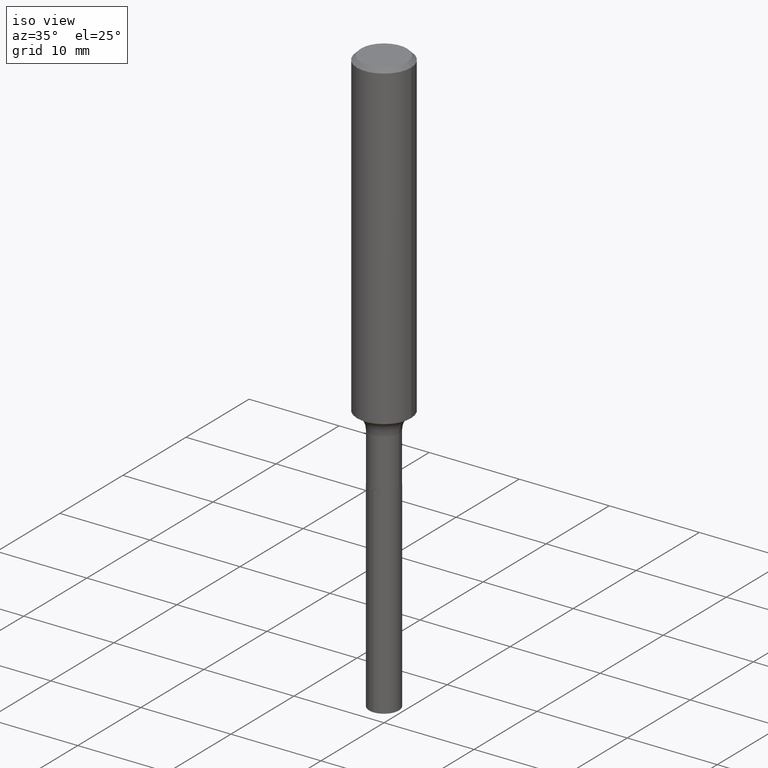
[diagram: clean part render]
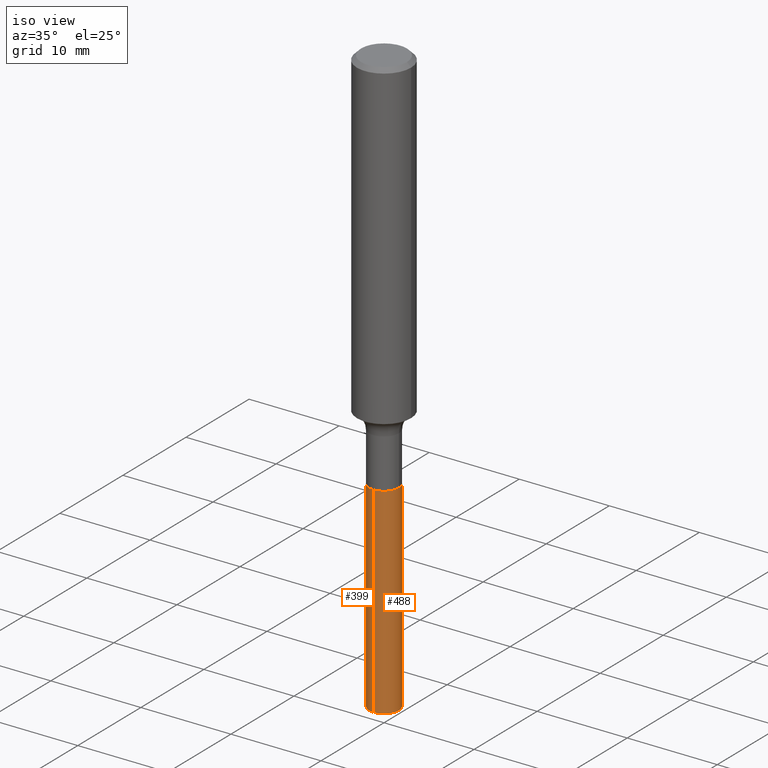
[diagram: same view with one multi-face feature highlighted, each face labeled with its STEP entity id]
A machine part, iso view. The highlighted faces form ONE feature: a constant-radius fillet chain: 2 tangent blend faces with common blend radius 1.6497 mm. The faces share edges in the B-rep.
Their STEP definitions:
[1] entity #399 (Cylinder):
#8 = VERTEX_POINT ( 'NONE', #373 ) ;
#24 = DIRECTION ( 'NONE',  ( -6.982962677686266711E-15, -1.000000000000000000, 4.206078512185163024E-15 ) ) ;
#28 = EDGE_CURVE ( 'NONE', #311, #8, #394, .T. ) ;
#42 = CYLINDRICAL_SURFACE ( 'NONE', #109, 0.06494999999999999385 ) ;
#61 = EDGE_CURVE ( 'NONE', #110, #117, #405, .T. ) ;
#62 = ORIENTED_EDGE ( 'NONE', *, *, #326, .F. ) ;
#63 = DIRECTION ( 'NONE',  ( -2.451878459129800558E-29, 3.482302351011597532E-15, 1.000000000000000000 ) ) ;
#87 = AXIS2_PLACEMENT_3D ( 'NONE', #146, #441, #24 ) ;
#90 = CARTESIAN_POINT ( 'NONE',  ( 4.614975068762263436E-16, 0.06494999999999408191, -1.692500000000000338 ) ) ;
#109 = AXIS2_PLACEMENT_3D ( 'NONE', #121, #307, #266 ) ;
#110 = VERTEX_POINT ( 'NONE', #434 ) ;
#117 = VERTEX_POINT ( 'NONE', #296 ) ;
#120 = DIRECTION ( 'NONE',  ( -2.451878459129800558E-29, 3.482302351011597138E-15, 1.000000000000000000 ) ) ;
#121 = CARTESIAN_POINT ( 'NONE',  ( 4.138955954468343780E-29, -5.909332165992023872E-15, -1.692500000000000115 ) ) ;
#146 = CARTESIAN_POINT ( 'NONE',  ( 4.138955954468343780E-29, -5.909332165992023872E-15, -1.692500000000000115 ) ) ;
#168 = CARTESIAN_POINT ( 'NONE',  ( -4.535434259156815808E-16, -0.06495000000000590579, -1.692499999999999671 ) ) ;
#186 = VECTOR ( 'NONE', #63, 39.37007874015748143 ) ;
#198 = AXIS2_PLACEMENT_3D ( 'NONE', #233, #120, #487 ) ;
#202 = DIRECTION ( 'NONE',  ( -2.451878459129800558E-29, 3.482302351011597532E-15, 1.000000000000000000 ) ) ;
#233 = CARTESIAN_POINT ( 'NONE',  ( 6.294790922367213994E-29, -8.971176095960585550E-15, -2.571758496632007063 ) ) ;
#266 = DIRECTION ( 'NONE',  ( -6.982962677686266711E-15, -1.000000000000000000, 4.206078512185163024E-15 ) ) ;
#267 = FACE_OUTER_BOUND ( 'NONE', #283, .T. ) ;
#283 = EDGE_LOOP ( 'NONE', ( #412, #347, #393, #62 ) ) ;
#296 = CARTESIAN_POINT ( 'NONE',  ( -4.535434259156815808E-16, -0.06495000000000590579, -1.692499999999999671 ) ) ;
#298 = CARTESIAN_POINT ( 'NONE',  ( 4.614975068762477415E-16, 0.06494999999999100104, -2.571758496632007063 ) ) ;
#307 = DIRECTION ( 'NONE',  ( -2.451878459129800558E-29, 3.482302351011597138E-15, 1.000000000000000000 ) ) ;
#311 = VERTEX_POINT ( 'NONE', #298 ) ;
#326 = EDGE_CURVE ( 'NONE', #8, #117, #372, .T. ) ;
#342 = VECTOR ( 'NONE', #202, 39.37007874015748143 ) ;
#347 = ORIENTED_EDGE ( 'NONE', *, *, #476, .T. ) ;
#365 = CIRCLE ( 'NONE', #198, 0.06494999999999999385 ) ;
#372 = CIRCLE ( 'NONE', #87, 0.06494999999999999385 ) ;
#373 = CARTESIAN_POINT ( 'NONE',  ( 4.614975068762481359E-16, 0.06494999999999409579, -1.692500000000000338 ) ) ;
#393 = ORIENTED_EDGE ( 'NONE', *, *, #61, .T. ) ;
#394 = LINE ( 'NONE', #90, #342 ) ;
#399 = ADVANCED_FACE ( 'NONE', ( #267 ), #42, .T. ) ;
#405 = LINE ( 'NONE', #168, #186 ) ;
#412 = ORIENTED_EDGE ( 'NONE', *, *, #28, .F. ) ;
#434 = CARTESIAN_POINT ( 'NONE',  ( -4.535434259156597885E-16, -0.06495000000000894502, -2.571758496632007063 ) ) ;
#441 = DIRECTION ( 'NONE',  ( -2.451878459129800558E-29, 3.482302351011597138E-15, 1.000000000000000000 ) ) ;
#476 = EDGE_CURVE ( 'NONE', #311, #110, #365, .T. ) ;
#487 = DIRECTION ( 'NONE',  ( -6.982962677686265133E-15, -1.000000000000000000, 0.000000000000000000 ) ) ;
[2] entity #488 (Cylinder):
#8 = VERTEX_POINT ( 'NONE', #373 ) ;
#11 = EDGE_CURVE ( 'NONE', #117, #8, #156, .T. ) ;
#13 = CIRCLE ( 'NONE', #125, 0.06494999999999999385 ) ;
#28 = EDGE_CURVE ( 'NONE', #311, #8, #394, .T. ) ;
#57 = DIRECTION ( 'NONE',  ( -2.451878459129800558E-29, 3.482302351011597138E-15, 1.000000000000000000 ) ) ;
#61 = EDGE_CURVE ( 'NONE', #110, #117, #405, .T. ) ;
#63 = DIRECTION ( 'NONE',  ( -2.451878459129800558E-29, 3.482302351011597532E-15, 1.000000000000000000 ) ) ;
#90 = CARTESIAN_POINT ( 'NONE',  ( 4.614975068762263436E-16, 0.06494999999999408191, -1.692500000000000338 ) ) ;
#110 = VERTEX_POINT ( 'NONE', #434 ) ;
#111 = CYLINDRICAL_SURFACE ( 'NONE', #408, 0.06494999999999999385 ) ;
#112 = DIRECTION ( 'NONE',  ( -2.451878459129800558E-29, 3.482302351011597138E-15, 1.000000000000000000 ) ) ;
#117 = VERTEX_POINT ( 'NONE', #296 ) ;
#125 = AXIS2_PLACEMENT_3D ( 'NONE', #375, #217, #448 ) ;
#142 = ORIENTED_EDGE ( 'NONE', *, *, #11, .F. ) ;
#152 = DIRECTION ( 'NONE',  ( -6.982962677686266711E-15, -1.000000000000000000, 4.206078512185163024E-15 ) ) ;
#154 = EDGE_LOOP ( 'NONE', ( #422, #218, #142, #225 ) ) ;
#156 = CIRCLE ( 'NONE', #435, 0.06494999999999999385 ) ;
#168 = CARTESIAN_POINT ( 'NONE',  ( -4.535434259156815808E-16, -0.06495000000000590579, -1.692499999999999671 ) ) ;
#184 = CARTESIAN_POINT ( 'NONE',  ( 4.138955954468343780E-29, -5.909332165992023872E-15, -1.692500000000000115 ) ) ;
#186 = VECTOR ( 'NONE', #63, 39.37007874015748143 ) ;
#187 = EDGE_CURVE ( 'NONE', #110, #311, #13, .T. ) ;
#202 = DIRECTION ( 'NONE',  ( -2.451878459129800558E-29, 3.482302351011597532E-15, 1.000000000000000000 ) ) ;
#209 = DIRECTION ( 'NONE',  ( -6.982962677686266711E-15, -1.000000000000000000, 4.206078512185163024E-15 ) ) ;
#217 = DIRECTION ( 'NONE',  ( -2.451878459129800558E-29, 3.482302351011597138E-15, 1.000000000000000000 ) ) ;
#218 = ORIENTED_EDGE ( 'NONE', *, *, #28, .T. ) ;
#225 = ORIENTED_EDGE ( 'NONE', *, *, #61, .F. ) ;
#242 = CARTESIAN_POINT ( 'NONE',  ( 4.138955954468343780E-29, -5.909332165992023872E-15, -1.692500000000000115 ) ) ;
#296 = CARTESIAN_POINT ( 'NONE',  ( -4.535434259156815808E-16, -0.06495000000000590579, -1.692499999999999671 ) ) ;
#298 = CARTESIAN_POINT ( 'NONE',  ( 4.614975068762477415E-16, 0.06494999999999100104, -2.571758496632007063 ) ) ;
#306 = FACE_OUTER_BOUND ( 'NONE', #154, .T. ) ;
#311 = VERTEX_POINT ( 'NONE', #298 ) ;
#342 = VECTOR ( 'NONE', #202, 39.37007874015748143 ) ;
#373 = CARTESIAN_POINT ( 'NONE',  ( 4.614975068762481359E-16, 0.06494999999999409579, -1.692500000000000338 ) ) ;
#375 = CARTESIAN_POINT ( 'NONE',  ( 6.294790922367213994E-29, -8.971176095960585550E-15, -2.571758496632007063 ) ) ;
#394 = LINE ( 'NONE', #90, #342 ) ;
#405 = LINE ( 'NONE', #168, #186 ) ;
#408 = AXIS2_PLACEMENT_3D ( 'NONE', #184, #112, #152 ) ;
#422 = ORIENTED_EDGE ( 'NONE', *, *, #187, .T. ) ;
#434 = CARTESIAN_POINT ( 'NONE',  ( -4.535434259156597885E-16, -0.06495000000000894502, -2.571758496632007063 ) ) ;
#435 = AXIS2_PLACEMENT_3D ( 'NONE', #242, #57, #209 ) ;
#448 = DIRECTION ( 'NONE',  ( -6.982962677686265133E-15, -1.000000000000000000, 0.000000000000000000 ) ) ;
#488 = ADVANCED_FACE ( 'NONE', ( #306 ), #111, .T. ) ;